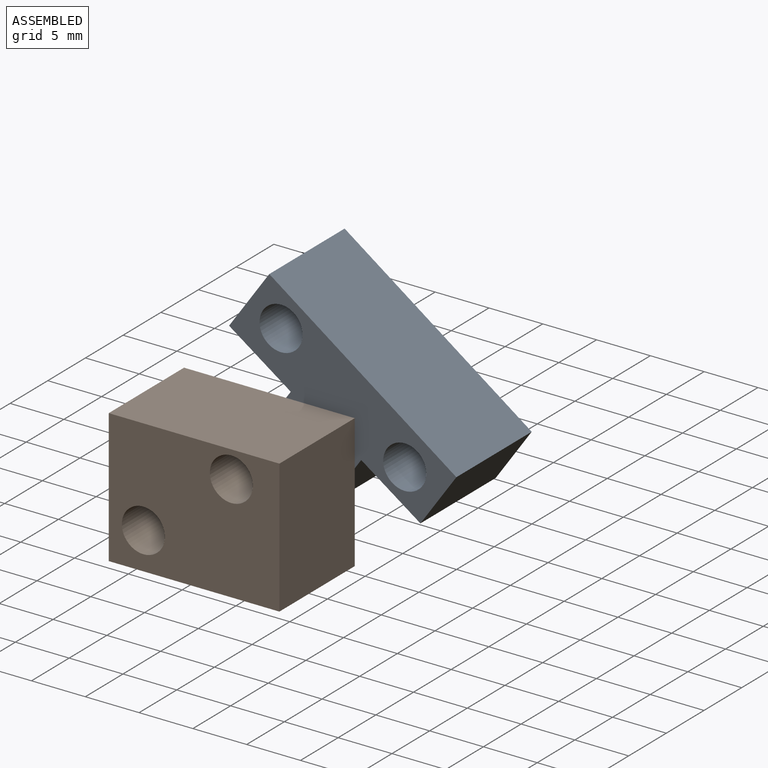
[diagram: assembled view]
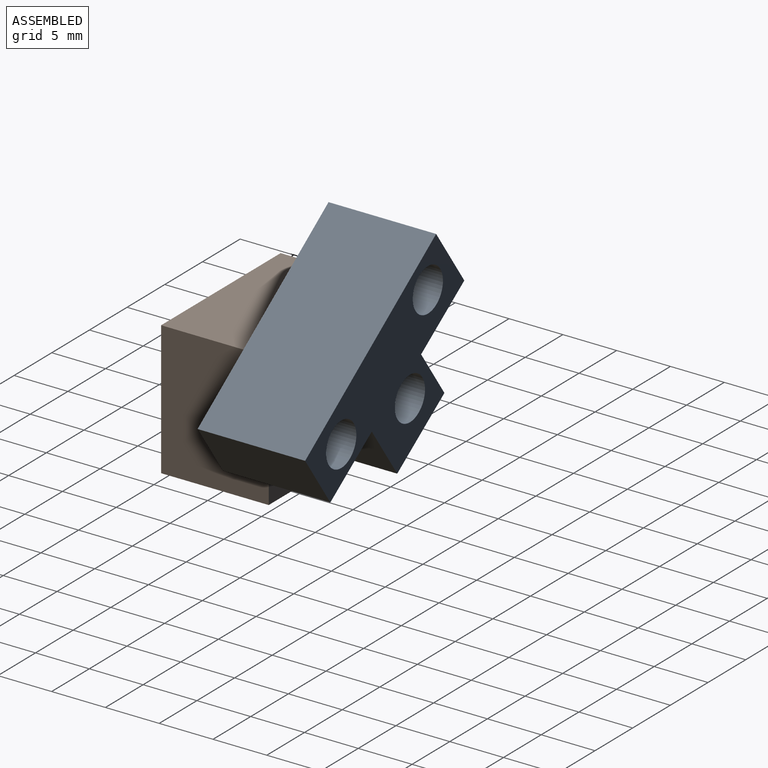
[diagram: assembled view, second angle]
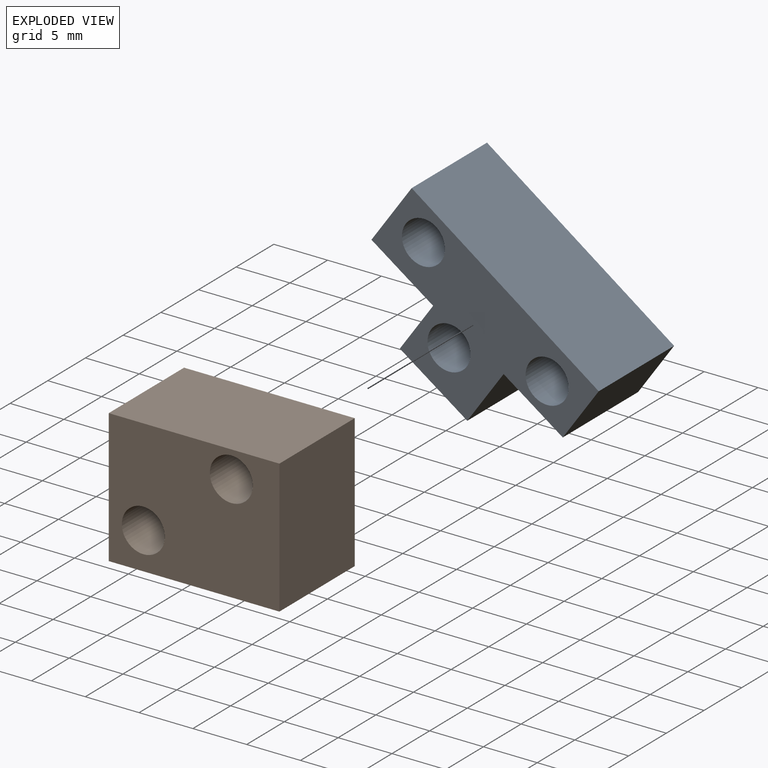
[diagram: exploded view]
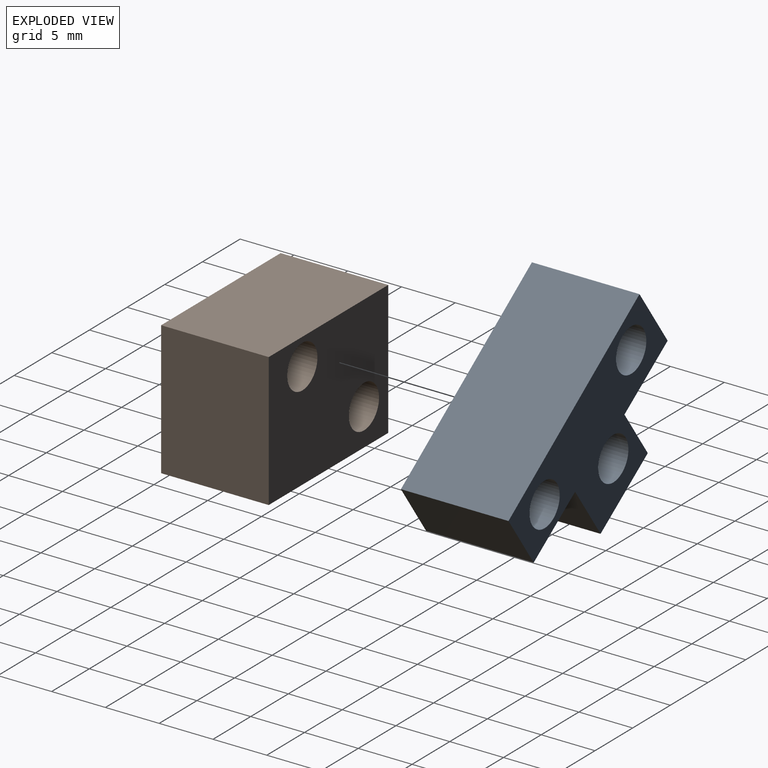
[diagram: exploded view, second angle]
ASSEMBLY  parts=2 mates=2
PART A: 13 faces, bbox 21.4x10x11.9 mm
  f0: plane 21.37x10mm, normal (-0.01,0,1), area 213.7mm2, adj f1,f10,f11,f12
  f1: plane 10x5.83mm, normal (-1,0,0), area 58.3mm2, adj f0,f2,f11,f12
  f2: plane 10x6.72mm, normal (0,0,-1), area 67.2mm2, adj f1,f3,f11,f12
  f3: plane 10x5.89mm, normal (-1,0,0), area 58.9mm2, adj f2,f4,f11,f12
  f4: plane 10x7.65mm, normal (0,0,-1), area 76.5mm2, adj f3,f5,f11,f12
  f5: plane 10x5.4mm, normal (1,0,0), area 54mm2, adj f4,f6,f11,f12
  f6: plane 10x7mm, normal (0,0,-1), area 70mm2, adj f5,f10,f11,f12
  f7: cylinder r=2mm len=10mm, axis (0,1,0), area 125.7mm2, adj f11,f12
  f8: cylinder r=2mm len=10mm, axis (0,1,0), area 125.7mm2, adj f11,f12
  f9: cylinder r=2mm len=10mm, axis (0,1,0), area 125.7mm2, adj f11,f12
  f10: plane 10x6.52mm, normal (1,0,0), area 65.2mm2, adj f0,f6,f11,f12
  f11: plane 21.37x11.91mm, normal (0,-1,0), area 137.4mm2, adj f0,f1,f2,f3,f4,f5,f6,f7
  f12: plane 21.37x11.91mm, normal (0,1,0), area 137.4mm2, adj f0,f1,f2,f3,f4,f5,f6,f7
PART B: 8 faces, bbox 15.9x10x12.4 mm
  f0: plane 15.86x10mm, normal (0,0,1), area 158.6mm2, adj f1,f5,f6,f7
  f1: plane 12.43x10mm, normal (-1,0,0), area 124.3mm2, adj f0,f2,f6,f7
  f2: plane 15.86x10mm, normal (0,0,-1), area 158.6mm2, adj f1,f5,f6,f7
  f3: cylinder r=2mm len=10mm, axis (0,1,0), area 125.7mm2, adj f6,f7
  f4: cylinder r=2mm len=10mm, axis (0,1,0), area 125.7mm2, adj f6,f7
  f5: plane 12.43x10mm, normal (1,0,0), area 124.3mm2, adj f0,f2,f6,f7
  f6: plane 15.86x12.43mm, normal (0,-1,0), area 172mm2, adj f0,f1,f2,f3,f4,f5
  f7: plane 15.86x12.43mm, normal (0,1,0), area 172mm2, adj f0,f1,f2,f3,f4,f5
PLACE A rot(axis=(-0.3,0,-0.95),180deg) t=(18.13,0,-31.7)mm
PLACE B at identity fixed
MATE cylindrical B.f3 <-> A.f9  axis (0,1,0) through (4.57,0,4.15)mm
MATE revolute A.f9 <-> B.f3  axis (0,-1,0) through (4.57,0,4.15)mm
